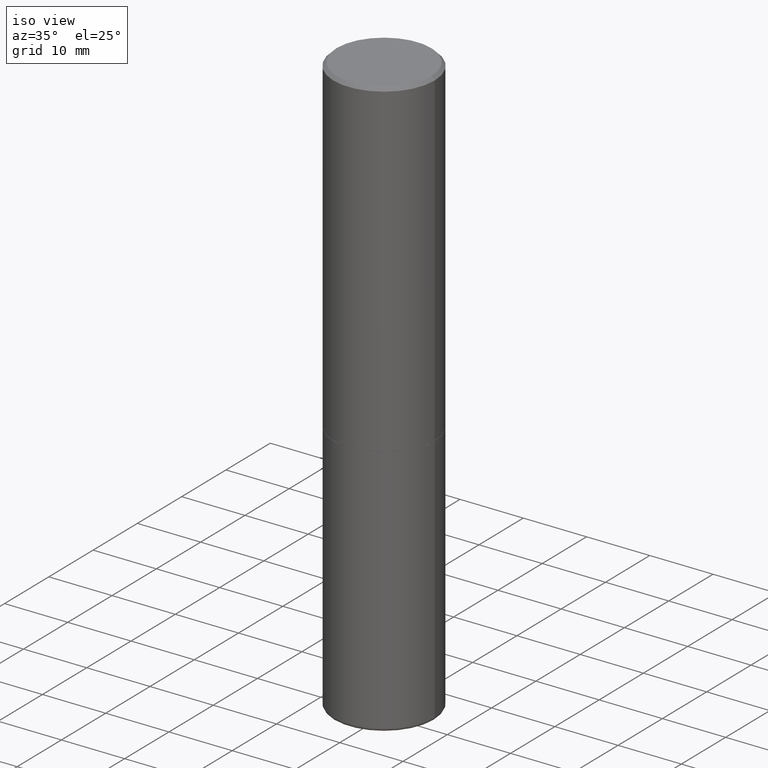
[diagram: clean part render]
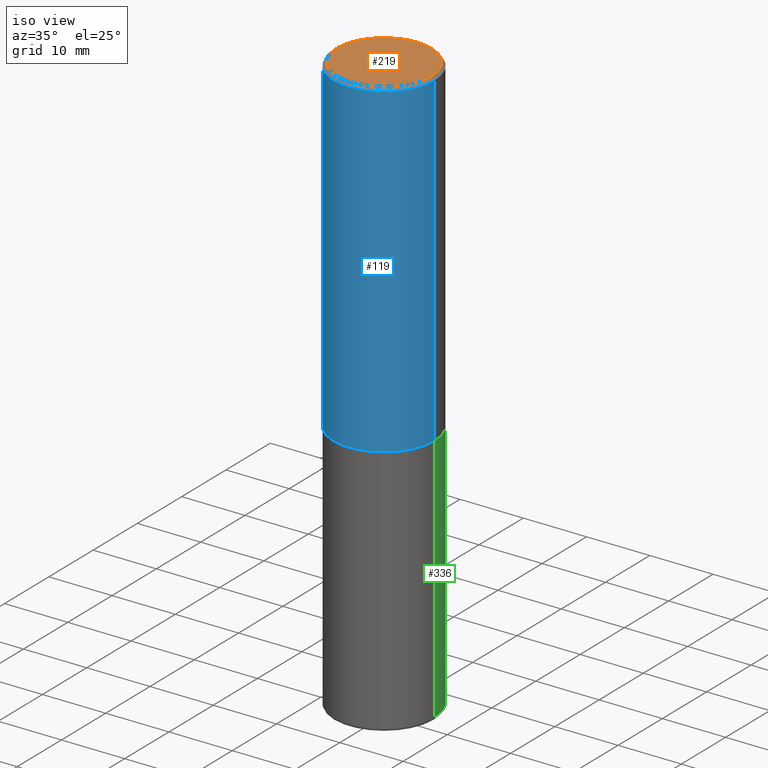
[diagram: same view with three faces highlighted in distinct colors, each labeled with its STEP entity id]
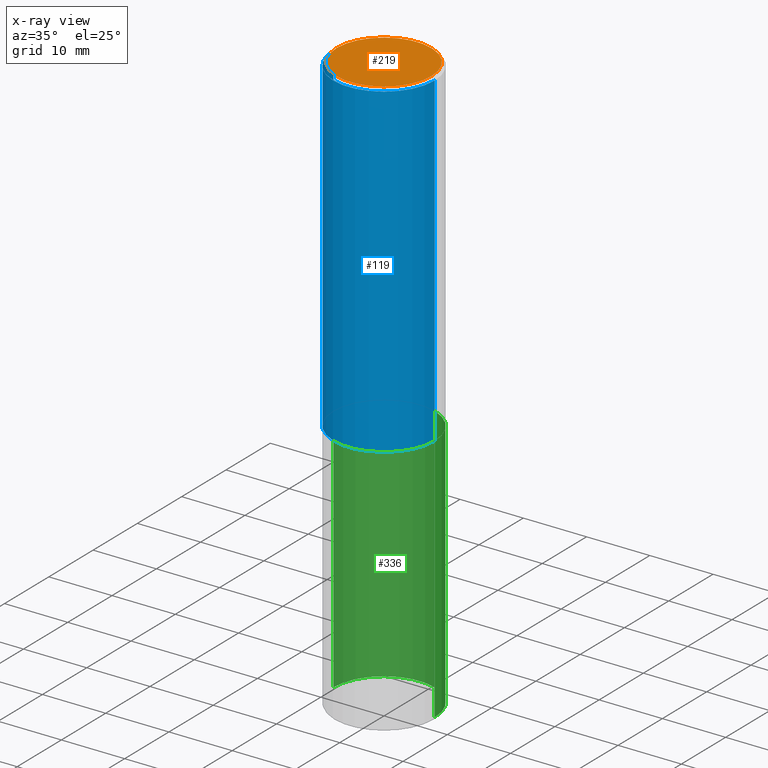
[diagram: x-ray of the same camera — body ghosted, the three highlighted faces saturated]
A machine part, iso view with three faces highlighted in distinct colors.
The next image is the same camera in x-ray (body ghosted, the three faces saturated) — at least one of them is partly hidden behind the body in this view.
Their STEP definitions:

[orange] entity #219 — the highlighted planar face has unit normal (0, -0, -1).
#19 = CARTESIAN_POINT ( 'NONE',  ( -4.488561081641444621E-45, 6.408475632635922878E-31, 1.835460370743176819E-16 ) ) ;
#27 = ORIENTED_EDGE ( 'NONE', *, *, #315, .T. ) ;
#28 = EDGE_CURVE ( 'NONE', #377, #30, #239, .T. ) ;
#30 = VERTEX_POINT ( 'NONE', #330 ) ;
#37 = PLANE ( 'NONE',  #93 ) ;
#44 = DIRECTION ( 'NONE',  ( 1.000000000000000000, -6.982962677686265922E-15, 4.874125435057325556E-29 ) ) ;
#69 = DIRECTION ( 'NONE',  ( 1.000000000000000000, -6.982962677686265922E-15, 4.874125435057325556E-29 ) ) ;
#71 = FACE_OUTER_BOUND ( 'NONE', #370, .T. ) ;
#93 = AXIS2_PLACEMENT_3D ( 'NONE', #167, #170, #287 ) ;
#146 = DIRECTION ( 'NONE',  ( -2.445468806185136597E-29, 3.491481338843145583E-15, 1.000000000000000000 ) ) ;
#167 = CARTESIAN_POINT ( 'NONE',  ( 2.059624841783562486E-15, 0.2949499999999997679, -9.380394023546260134E-16 ) ) ;
#170 = DIRECTION ( 'NONE',  ( 2.438088387897960049E-29, -3.491481338843145188E-15, -1.000000000000000000 ) ) ;
#198 = DIRECTION ( 'NONE',  ( -2.445468806185136597E-29, 3.491481338843145583E-15, 1.000000000000000000 ) ) ;
#219 = ADVANCED_FACE ( 'NONE', ( #71 ), #37, .F. ) ;
#225 = AXIS2_PLACEMENT_3D ( 'NONE', #19, #146, #44 ) ;
#239 = CIRCLE ( 'NONE', #354, 0.2949499999999997679 ) ;
#287 = DIRECTION ( 'NONE',  ( -1.000000000000000000, 6.982962677686265922E-15, -4.876176775795935793E-29 ) ) ;
#315 = EDGE_CURVE ( 'NONE', #30, #377, #355, .T. ) ;
#330 = CARTESIAN_POINT ( 'NONE',  ( 0.2949499999999997679, -2.127023677808858891E-15, 1.835460370743323251E-16 ) ) ;
#354 = AXIS2_PLACEMENT_3D ( 'NONE', #391, #198, #69 ) ;
#355 = CIRCLE ( 'NONE', #225, 0.2949499999999997679 ) ;
#370 = EDGE_LOOP ( 'NONE', ( #411, #27 ) ) ;
#371 = CARTESIAN_POINT ( 'NONE',  ( -0.2949499999999997679, 2.094539655171994924E-15, 1.835460370743031619E-16 ) ) ;
#377 = VERTEX_POINT ( 'NONE', #371 ) ;
#391 = CARTESIAN_POINT ( 'NONE',  ( -4.488561081641444621E-45, 6.408475632635922878E-31, 1.835460370743176819E-16 ) ) ;
#411 = ORIENTED_EDGE ( 'NONE', *, *, #28, .T. ) ;

[blue] entity #119 — the highlighted cylindrical surface (partial cylindrical patch) has radius 7.9997 mm, axis along (-0, 0, 1).
#1 = VECTOR ( 'NONE', #15, 39.37007874015748143 ) ;
#15 = DIRECTION ( 'NONE',  ( -2.445468806185136877E-29, 3.491481338843145188E-15, 1.000000000000000000 ) ) ;
#54 = VERTEX_POINT ( 'NONE', #228 ) ;
#60 = CIRCLE ( 'NONE', #121, 0.3149499999999999522 ) ;
#75 = CARTESIAN_POINT ( 'NONE',  ( 0.000000000000000000, 0.000000000000000000, 0.000000000000000000 ) ) ;
#77 = DIRECTION ( 'NONE',  ( -2.445468806185136597E-29, 3.491481338843145583E-15, 1.000000000000000000 ) ) ;
#81 = LINE ( 'NONE', #268, #1 ) ;
#98 = EDGE_LOOP ( 'NONE', ( #274, #123, #242, #184 ) ) ;
#100 = CARTESIAN_POINT ( 'NONE',  ( 0.3149499999999999522, -2.230543471175006661E-15, -0.02000000000000006981 ) ) ;
#109 = CYLINDRICAL_SURFACE ( 'NONE', #323, 0.3149500000000001743 ) ;
#111 = CARTESIAN_POINT ( 'NONE',  ( 4.890937612370289799E-31, -6.982962677686315028E-17, -0.02000000000000006981 ) ) ;
#119 = ADVANCED_FACE ( 'NONE', ( #145 ), #109, .T. ) ;
#121 = AXIS2_PLACEMENT_3D ( 'NONE', #111, #301, #305 ) ;
#123 = ORIENTED_EDGE ( 'NONE', *, *, #412, .T. ) ;
#124 = EDGE_CURVE ( 'NONE', #205, #249, #168, .T. ) ;
#129 = CIRCLE ( 'NONE', #213, 0.3149500000000002853 ) ;
#145 = FACE_OUTER_BOUND ( 'NONE', #98, .T. ) ;
#149 = CARTESIAN_POINT ( 'NONE',  ( 5.003918271216025517E-29, -7.144269115540843617E-15, -2.046199999999999797 ) ) ;
#168 = LINE ( 'NONE', #395, #208 ) ;
#176 = DIRECTION ( 'NONE',  ( 1.000000000000000000, -6.982962677686265922E-15, 4.876176775795935232E-29 ) ) ;
#180 = CARTESIAN_POINT ( 'NONE',  ( -0.3149500000000002853, -1.369195024882414317E-15, -2.046199999999999797 ) ) ;
#184 = ORIENTED_EDGE ( 'NONE', *, *, #414, .F. ) ;
#204 = DIRECTION ( 'NONE',  ( -2.445468806185136597E-29, 3.491481338843145583E-15, 1.000000000000000000 ) ) ;
#205 = VERTEX_POINT ( 'NONE', #223 ) ;
#208 = VECTOR ( 'NONE', #365, 39.37007874015748143 ) ;
#213 = AXIS2_PLACEMENT_3D ( 'NONE', #149, #204, #403 ) ;
#223 = CARTESIAN_POINT ( 'NONE',  ( 0.3149500000000002853, -9.343553210878135066E-15, -2.046199999999999797 ) ) ;
#228 = CARTESIAN_POINT ( 'NONE',  ( -0.3149499999999999522, 2.129454468560426178E-15, -0.02000000000000006981 ) ) ;
#242 = ORIENTED_EDGE ( 'NONE', *, *, #124, .T. ) ;
#249 = VERTEX_POINT ( 'NONE', #100 ) ;
#268 = CARTESIAN_POINT ( 'NONE',  ( -0.3149500000000001743, 2.237854346276436774E-15, -1.549218606675783237E-29 ) ) ;
#274 = ORIENTED_EDGE ( 'NONE', *, *, #389, .F. ) ;
#301 = DIRECTION ( 'NONE',  ( -2.445468806185136597E-29, 3.491481338843145583E-15, 1.000000000000000000 ) ) ;
#305 = DIRECTION ( 'NONE',  ( 1.000000000000000000, -6.982962677686266711E-15, 0.000000000000000000 ) ) ;
#317 = VERTEX_POINT ( 'NONE', #180 ) ;
#323 = AXIS2_PLACEMENT_3D ( 'NONE', #75, #77, #176 ) ;
#365 = DIRECTION ( 'NONE',  ( -2.445468806185136877E-29, 3.491481338843145188E-15, 1.000000000000000000 ) ) ;
#389 = EDGE_CURVE ( 'NONE', #317, #54, #81, .T. ) ;
#395 = CARTESIAN_POINT ( 'NONE',  ( 0.3149500000000001743, -2.199284095337290660E-15, 1.535751875536930690E-29 ) ) ;
#403 = DIRECTION ( 'NONE',  ( 1.000000000000000000, -6.982962677686267499E-15, 0.000000000000000000 ) ) ;
#412 = EDGE_CURVE ( 'NONE', #317, #205, #129, .T. ) ;
#414 = EDGE_CURVE ( 'NONE', #54, #249, #60, .T. ) ;

[green] entity #336 — the highlighted cylindrical surface (partial cylindrical patch) has radius 7.9997 mm, axis along (-0, 0, 1).
#6 = CARTESIAN_POINT ( 'NONE',  ( 0.3149500000000000077, -2.199284095337289871E-15, 1.535751875536930130E-29 ) ) ;
#17 = CARTESIAN_POINT ( 'NONE',  ( 0.3149500000000000077, -9.347044692216978073E-15, -2.047199999999999687 ) ) ;
#35 = LINE ( 'NONE', #6, #347 ) ;
#48 = CARTESIAN_POINT ( 'NONE',  ( -0.3149500000000000077, 2.237854346276435590E-15, -1.549218606675782676E-29 ) ) ;
#51 = VECTOR ( 'NONE', #348, 39.37007874015748143 ) ;
#56 = VERTEX_POINT ( 'NONE', #17 ) ;
#65 = EDGE_CURVE ( 'NONE', #56, #185, #318, .T. ) ;
#78 = CYLINDRICAL_SURFACE ( 'NONE', #386, 0.3149500000000000077 ) ;
#92 = VERTEX_POINT ( 'NONE', #113 ) ;
#96 = EDGE_CURVE ( 'NONE', #92, #56, #35, .T. ) ;
#113 = CARTESIAN_POINT ( 'NONE',  ( 0.3149499999999999522, -1.477664732225195383E-14, -3.602300000000000058 ) ) ;
#135 = CARTESIAN_POINT ( 'NONE',  ( -0.3149500000000000077, -7.624707565620739308E-15, -2.047199999999999687 ) ) ;
#141 = CARTESIAN_POINT ( 'NONE',  ( 8.809312280520716617E-29, -1.257736322691466396E-14, -3.602300000000000058 ) ) ;
#175 = CARTESIAN_POINT ( 'NONE',  ( 0.000000000000000000, 0.000000000000000000, 0.000000000000000000 ) ) ;
#182 = ORIENTED_EDGE ( 'NONE', *, *, #65, .F. ) ;
#185 = VERTEX_POINT ( 'NONE', #135 ) ;
#201 = DIRECTION ( 'NONE',  ( 1.000000000000000000, -6.982962677686266711E-15, 4.876176775795936353E-29 ) ) ;
#222 = CARTESIAN_POINT ( 'NONE',  ( -0.3149499999999999522, -1.033950888063822640E-14, -3.602300000000000058 ) ) ;
#230 = DIRECTION ( 'NONE',  ( 1.000000000000000000, -6.982962677686269866E-15, 0.000000000000000000 ) ) ;
#247 = CIRCLE ( 'NONE', #320, 0.3149500000000000077 ) ;
#251 = VERTEX_POINT ( 'NONE', #222 ) ;
#257 = DIRECTION ( 'NONE',  ( 1.000000000000000000, -6.982962677686269866E-15, 0.000000000000000000 ) ) ;
#267 = DIRECTION ( 'NONE',  ( -2.445468806185136877E-29, 3.491481338843145188E-15, 1.000000000000000000 ) ) ;
#290 = CARTESIAN_POINT ( 'NONE',  ( 5.006363740022211120E-29, -7.147760596879686624E-15, -2.047199999999999687 ) ) ;
#294 = DIRECTION ( 'NONE',  ( -2.445468806185136597E-29, 3.491481338843145583E-15, 1.000000000000000000 ) ) ;
#308 = ORIENTED_EDGE ( 'NONE', *, *, #309, .T. ) ;
#309 = EDGE_CURVE ( 'NONE', #92, #251, #247, .T. ) ;
#311 = ORIENTED_EDGE ( 'NONE', *, *, #418, .T. ) ;
#318 = CIRCLE ( 'NONE', #409, 0.3149500000000000077 ) ;
#320 = AXIS2_PLACEMENT_3D ( 'NONE', #141, #396, #230 ) ;
#335 = LINE ( 'NONE', #48, #51 ) ;
#336 = ADVANCED_FACE ( 'NONE', ( #338 ), #78, .T. ) ;
#338 = FACE_OUTER_BOUND ( 'NONE', #380, .T. ) ;
#346 = ORIENTED_EDGE ( 'NONE', *, *, #96, .F. ) ;
#347 = VECTOR ( 'NONE', #267, 39.37007874015748143 ) ;
#348 = DIRECTION ( 'NONE',  ( -2.445468806185136877E-29, 3.491481338843145188E-15, 1.000000000000000000 ) ) ;
#369 = DIRECTION ( 'NONE',  ( -2.445468806185136597E-29, 3.491481338843145583E-15, 1.000000000000000000 ) ) ;
#380 = EDGE_LOOP ( 'NONE', ( #308, #311, #182, #346 ) ) ;
#386 = AXIS2_PLACEMENT_3D ( 'NONE', #175, #369, #201 ) ;
#396 = DIRECTION ( 'NONE',  ( -2.445468806185136597E-29, 3.491481338843145583E-15, 1.000000000000000000 ) ) ;
#409 = AXIS2_PLACEMENT_3D ( 'NONE', #290, #294, #257 ) ;
#418 = EDGE_CURVE ( 'NONE', #251, #185, #335, .T. ) ;